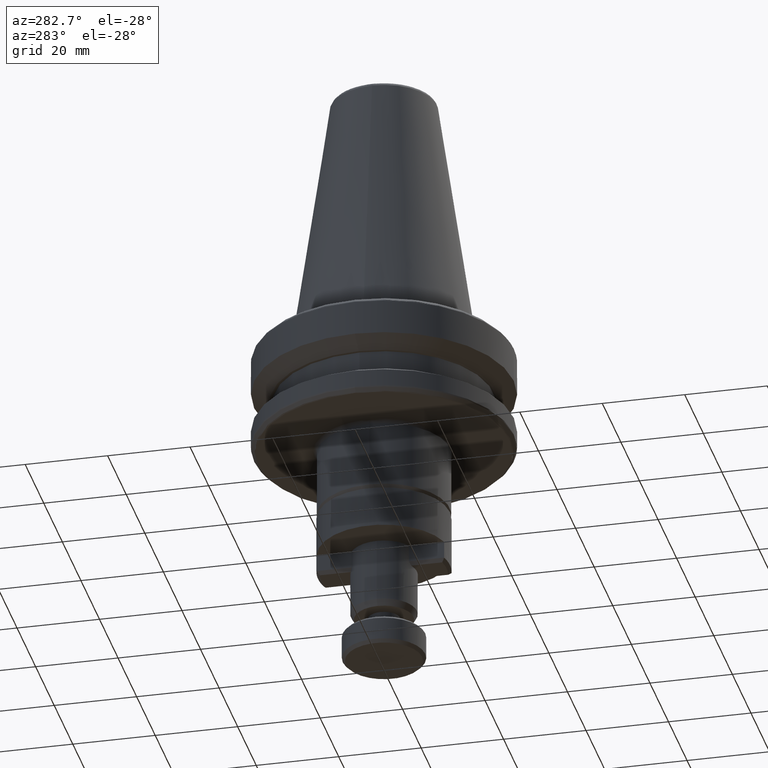
[diagram: clean part render]
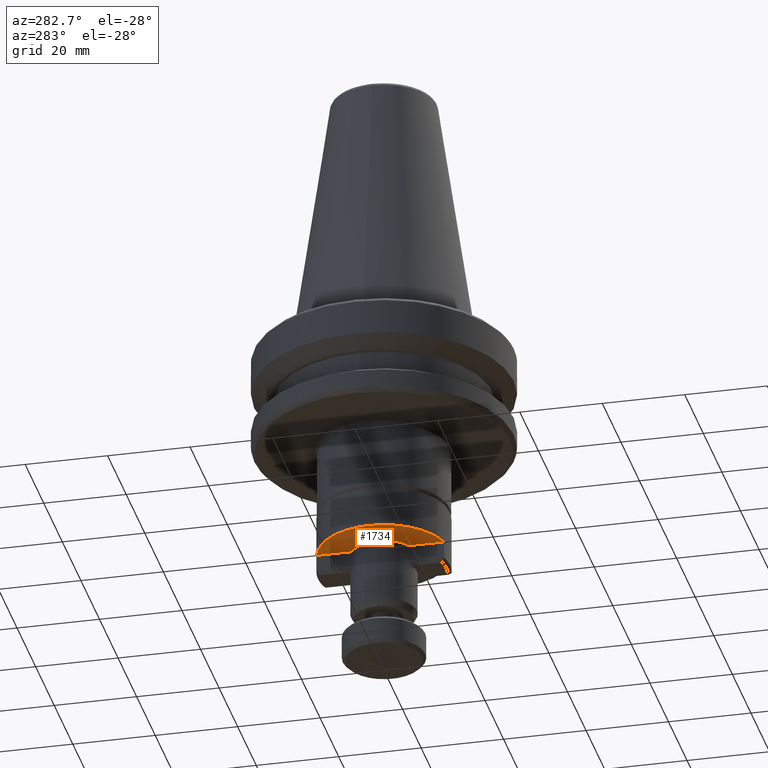
[diagram: same view with one face highlighted and labeled with its STEP entity id]
A machine part, auxiliary view. The second image highlights one B-rep face of the part: STEP entity #1734.
In plain terms, the highlighted planar face has unit normal (0, 0, -1).
Its self-contained STEP definition (entity closure, byte-faithful):
#126 = EDGE_CURVE ( 'NONE', #2132, #521, #369, .T. ) ;
#369 = CIRCLE ( 'NONE', #2147, 8.000000000000000000 ) ;
#373 = EDGE_CURVE ( 'NONE', #3720, #2132, #3700, .T. ) ;
#396 = DIRECTION ( 'NONE',  ( -0.0000000000000000000, -1.000000000000000000, -0.0000000000000000000 ) ) ;
#402 = CARTESIAN_POINT ( 'NONE',  ( 0.0000000000000000000, -1.138412281543461900E-016, -54.99999999839999300 ) ) ;
#521 = VERTEX_POINT ( 'NONE', #2436 ) ;
#598 = VECTOR ( 'NONE', #3154, 1000.000000000000000 ) ;
#680 = CARTESIAN_POINT ( 'NONE',  ( -3.999999999630017300, -6.928203230702727000, -55.00000000250000200 ) ) ;
#714 = DIRECTION ( 'NONE',  ( 0.0000000000000000000, -1.000000000000000000, 0.0000000000000000000 ) ) ;
#903 = EDGE_CURVE ( 'NONE', #3952, #521, #1416, .T. ) ;
#932 = EDGE_LOOP ( 'NONE', ( #3164, #2575, #2855, #3807, #1311 ) ) ;
#944 = VERTEX_POINT ( 'NONE', #3166 ) ;
#1007 = DIRECTION ( 'NONE',  ( -0.0000000000000000000, 0.0000000000000000000, -1.000000000000000000 ) ) ;
#1015 = CARTESIAN_POINT ( 'NONE',  ( -4.000000000000000000, -11.21006830750000200, -55.00000000000000000 ) ) ;
#1040 = CARTESIAN_POINT ( 'NONE',  ( -4.000000000000000000, 0.0000000000000000000, -55.00000000000000000 ) ) ;
#1193 = CARTESIAN_POINT ( 'NONE',  ( -4.000000000000000000, -15.67783658500000000, -55.00000000000000000 ) ) ;
#1311 = ORIENTED_EDGE ( 'NONE', *, *, #126, .F. ) ;
#1416 = LINE ( 'NONE', #1040, #598 ) ;
#1649 = DIRECTION ( 'NONE',  ( -0.0000000000000000000, 0.0000000000000000000, -1.000000000000000000 ) ) ;
#1680 = AXIS2_PLACEMENT_3D ( 'NONE', #402, #2550, #714 ) ;
#1734 = ADVANCED_FACE ( 'NONE', ( #3836 ), #2727, .T. ) ;
#1806 = DIRECTION ( 'NONE',  ( 0.0000000000000000000, 0.0000000000000000000, -1.000000000000000000 ) ) ;
#1859 = AXIS2_PLACEMENT_3D ( 'NONE', #2846, #1007, #3158 ) ;
#1908 = AXIS2_PLACEMENT_3D ( 'NONE', #1193, #1806, #3958 ) ;
#2067 = EDGE_CURVE ( 'NONE', #3720, #944, #2336, .T. ) ;
#2132 = VERTEX_POINT ( 'NONE', #2875 ) ;
#2147 = AXIS2_PLACEMENT_3D ( 'NONE', #2270, #1649, #3803 ) ;
#2270 = CARTESIAN_POINT ( 'NONE',  ( 0.0000000000000000000, 0.0000000000000000000, -55.00000000500000400 ) ) ;
#2336 = LINE ( 'NONE', #1015, #3146 ) ;
#2436 = CARTESIAN_POINT ( 'NONE',  ( -3.999999999318965200, 6.928203231061900200, -55.00000000250000200 ) ) ;
#2514 = EDGE_CURVE ( 'NONE', #944, #3952, #3819, .T. ) ;
#2550 = DIRECTION ( 'NONE',  ( -0.0000000000000000000, 2.710505431213761100E-017, -1.000000000000000000 ) ) ;
#2575 = ORIENTED_EDGE ( 'NONE', *, *, #2067, .T. ) ;
#2727 = PLANE ( 'NONE',  #1908 ) ;
#2846 = CARTESIAN_POINT ( 'NONE',  ( 0.0000000000000000000, 0.0000000000000000000, -55.00000000500000400 ) ) ;
#2855 = ORIENTED_EDGE ( 'NONE', *, *, #2514, .T. ) ;
#2875 = CARTESIAN_POINT ( 'NONE',  ( -8.000000000000000000, 9.797174393178825700E-016, -55.00000000500000400 ) ) ;
#3146 = VECTOR ( 'NONE', #396, 1000.000000000000000 ) ;
#3154 = DIRECTION ( 'NONE',  ( -0.0000000000000000000, -1.000000000000000000, -0.0000000000000000000 ) ) ;
#3158 = DIRECTION ( 'NONE',  ( 1.000000000000000000, 1.776356839400250500E-015, 0.0000000000000000000 ) ) ;
#3164 = ORIENTED_EDGE ( 'NONE', *, *, #373, .F. ) ;
#3166 = CARTESIAN_POINT ( 'NONE',  ( -3.999999999999999100, -15.49193338491483200, -54.99999999919999300 ) ) ;
#3199 = CARTESIAN_POINT ( 'NONE',  ( -4.000000000244092700, 15.49193338470362000, -54.99999999919999300 ) ) ;
#3700 = CIRCLE ( 'NONE', #1859, 8.000000000000000000 ) ;
#3720 = VERTEX_POINT ( 'NONE', #680 ) ;
#3803 = DIRECTION ( 'NONE',  ( 1.000000000000000000, 1.776356839400250500E-015, 0.0000000000000000000 ) ) ;
#3807 = ORIENTED_EDGE ( 'NONE', *, *, #903, .T. ) ;
#3819 = CIRCLE ( 'NONE', #1680, 16.00000000000000000 ) ;
#3836 = FACE_OUTER_BOUND ( 'NONE', #932, .T. ) ;
#3952 = VERTEX_POINT ( 'NONE', #3199 ) ;
#3958 = DIRECTION ( 'NONE',  ( -1.000000000000000000, 0.0000000000000000000, 0.0000000000000000000 ) ) ;